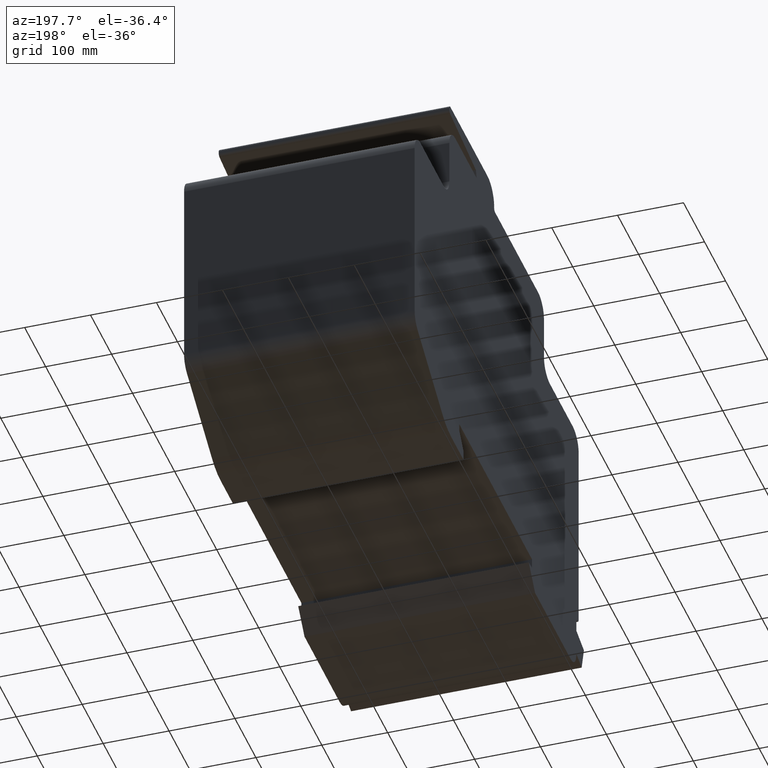
[diagram: clean part render]
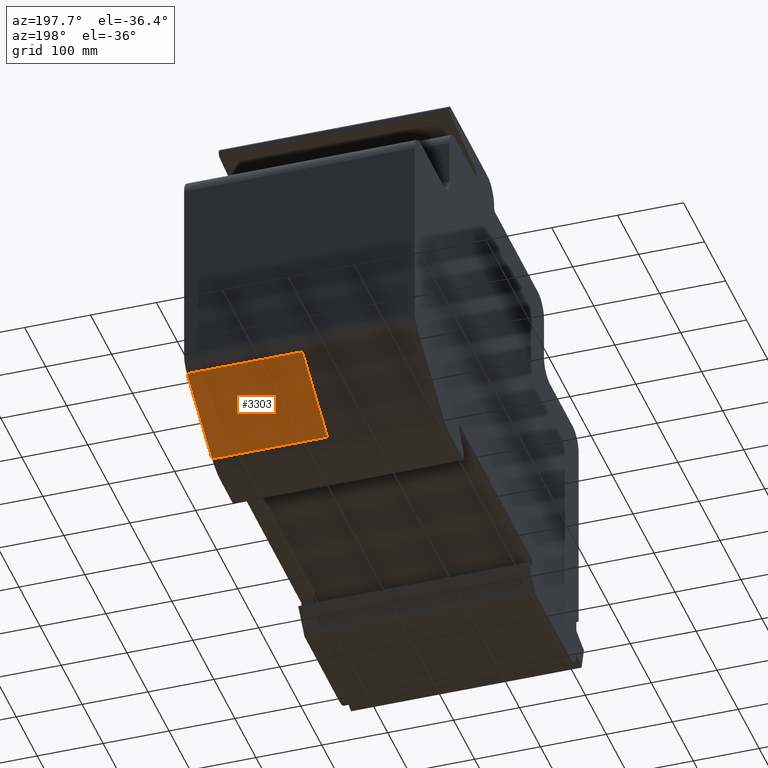
[diagram: same view with one face highlighted and labeled with its STEP entity id]
A machine part, auxiliary view. The second image highlights one B-rep face of the part: STEP entity #3303.
In plain terms, the highlighted planar face has unit normal (0, 0.501, -0.8654).
Its self-contained STEP definition (entity closure, byte-faithful):
#3245=CARTESIAN_POINT('',(350.00000000000057,197.82901557516368,29.911535333025952));
#3246=VERTEX_POINT('',#3245);
#3254=CARTESIAN_POINT('',(175.00000000000028,197.82901557516368,29.911535333025952));
#3255=VERTEX_POINT('',#3254);
#3256=CARTESIAN_POINT('',(175.00000000000028,197.82901557516368,29.911535333025952));
#3257=DIRECTION('',(1.0,0.0,0.0));
#3258=VECTOR('',#3257,175.00000000000028);
#3259=LINE('',#3256,#3258);
#3260=EDGE_CURVE('',#3255,#3246,#3259,.T.);
#3273=CARTESIAN_POINT('',(175.00000000000028,197.82901557516368,29.911535333025952));
#3274=DIRECTION('',(0.0,0.50103627054202,-0.865426285480943));
#3275=DIRECTION('',(-1.0,0.0,0.0));
#3276=AXIS2_PLACEMENT_3D('',#3273,#3274,#3275);
#3277=PLANE('',#3276);
#3278=CARTESIAN_POINT('',(350.00000000000057,78.395640551724313,-39.234102838497108));
#3279=VERTEX_POINT('',#3278);
#3280=CARTESIAN_POINT('',(350.00000000000057,197.82901557516368,29.911535333025952));
#3281=DIRECTION('',(0.0,-0.865426285480943,-0.50103627054202));
#3282=VECTOR('',#3281,138.00525478269549);
#3283=LINE('',#3280,#3282);
#3284=EDGE_CURVE('',#3246,#3279,#3283,.T.);
#3285=ORIENTED_EDGE('',*,*,#3284,.T.);
#3286=CARTESIAN_POINT('',(175.00000000000028,78.395640551724313,-39.234102838497108));
#3287=VERTEX_POINT('',#3286);
#3288=CARTESIAN_POINT('',(175.00000000000028,78.395640551724313,-39.234102838497108));
#3289=DIRECTION('',(1.0,0.0,0.0));
#3290=VECTOR('',#3289,175.00000000000028);
#3291=LINE('',#3288,#3290);
#3292=EDGE_CURVE('',#3287,#3279,#3291,.T.);
#3293=ORIENTED_EDGE('',*,*,#3292,.F.);
#3294=CARTESIAN_POINT('',(175.00000000000028,197.82901557516368,29.911535333025952));
#3295=DIRECTION('',(0.0,-0.865426285480943,-0.50103627054202));
#3296=VECTOR('',#3295,138.00525478269549);
#3297=LINE('',#3294,#3296);
#3298=EDGE_CURVE('',#3255,#3287,#3297,.T.);
#3299=ORIENTED_EDGE('',*,*,#3298,.F.);
#3300=ORIENTED_EDGE('',*,*,#3260,.T.);
#3301=EDGE_LOOP('',(#3285,#3293,#3299,#3300));
#3302=FACE_OUTER_BOUND('',#3301,.T.);
#3303=ADVANCED_FACE('',(#3302),#3277,.T.);